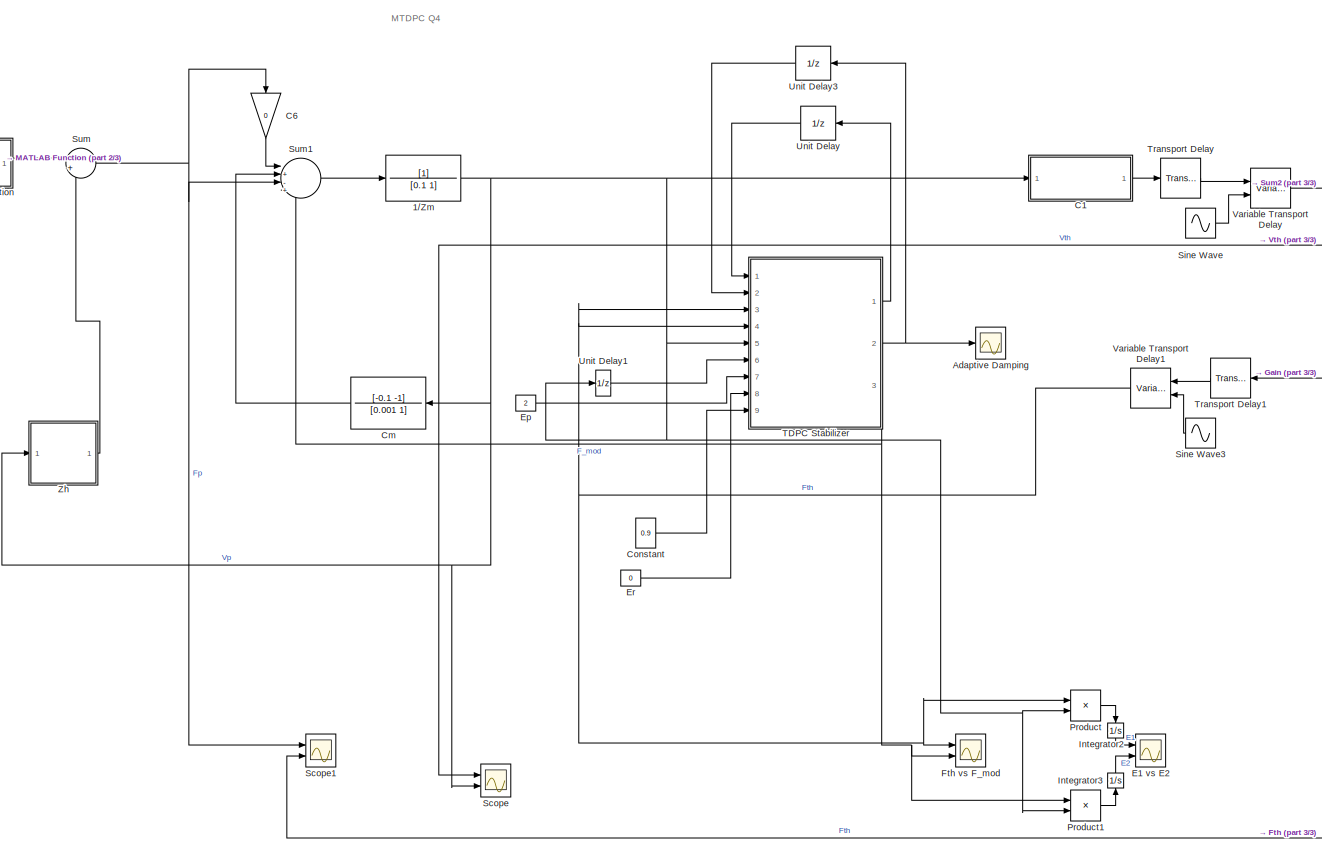
[diagram: root canvas - part 1/3, center side, full height]
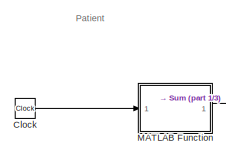
[diagram: root canvas - part 2/3, top left region]
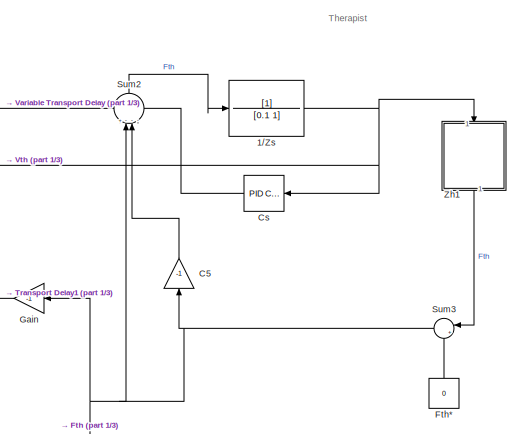
[diagram: root canvas - part 3/3, middle right region]
MODEL slx_9f220f8302b0
KIND model
CONFIG AbsTol = auto
CONFIG EnableMultiTasking = off
CONFIG FixedStep = 0.0001
CONFIG MaxStep = auto
CONFIG MinStep = auto
CONFIG RelTol = 1e-3
CONFIG SampleTimeConstraint = Unconstrained
CONFIG SolverName = ode4
CONFIG StartTime = 0.0
CONFIG StopTime = 20
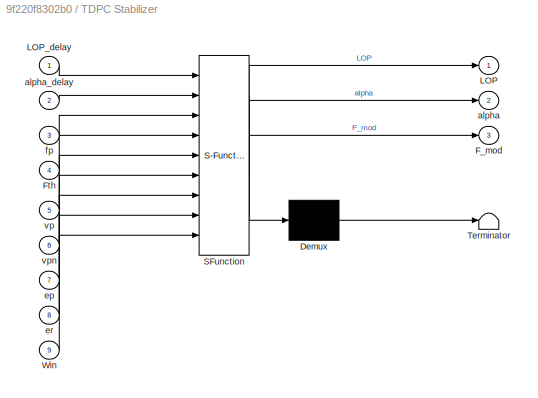
BLOCK [SubSystem]  TDPC Stabilizer
  ErrorFcn = Stateflow.Translate.translate
  PermitHierarchicalResolution = ExplicitOnly
  Ports = [9, 3]
  RequestExecContextInheritance = off
  SFBlockType = MATLAB Function
  TreatAsAtomicUnit = on
BLOCK [Demux]  TDPC Stabilizer/ Demux 
  Outputs = 1
  Ports = [1, 1]
BLOCK [S-Function]  TDPC Stabilizer/ SFunction 
  EnableBusSupport = on
  FunctionName = sf_sfun
  PortCounts = [9 4]
  Ports = [9, 4]
  SFcnIsStateOwnerBlock = off
  SFunctionDeploymentMode = off
  Tag = Stateflow S-Function 2
BLOCK [Terminator]  TDPC Stabilizer/ Terminator 
BLOCK [Outport]  TDPC Stabilizer/F_mod
  Port = 3
BLOCK [Inport]  TDPC Stabilizer/Fth
  Port = 4
BLOCK [Outport]  TDPC Stabilizer/LOP
BLOCK [Inport]  TDPC Stabilizer/LOP_delay
BLOCK [Inport]  TDPC Stabilizer/Win
  Port = 9
BLOCK [Outport]  TDPC Stabilizer/alpha
  Port = 2
BLOCK [Inport]  TDPC Stabilizer/alpha_delay
  Port = 2
BLOCK [Inport]  TDPC Stabilizer/ep
  Port = 7
BLOCK [Inport]  TDPC Stabilizer/er
  Port = 8
BLOCK [Inport]  TDPC Stabilizer/fp
  Port = 3
BLOCK [Inport]  TDPC Stabilizer/vp
  Port = 5
BLOCK [Inport]  TDPC Stabilizer/vpn
  Port = 6
BLOCK [TransferFcn] 1//Zm
  Denominator = [0.1 1]
BLOCK [TransferFcn] 1//Zs
  Denominator = [0.1 1]
BLOCK [Scope] Adaptive Damping
  Floating = off
  NumInputPorts = 1
  Ports = [1]
  ScopeSpecificationString = Simulink.scopes.TimeScopeBlockCfg('CurrentConfiguration', extmgr.ConfigurationSet(extmgr.Configuration('Core','General UI',true),extmgr.Configuration('Core','Source UI',true),extmgr.Configuration('Sources','WiredSimulink',true,'DataLoggingVariableName','ScopeData3'),extmgr.Configuration('Visuals','Time Domain',true,'SerializedDisplays',{struct('MinYLimReal','-17.85724','MaxYLimReal','160.71515','Y...<+1455ch>
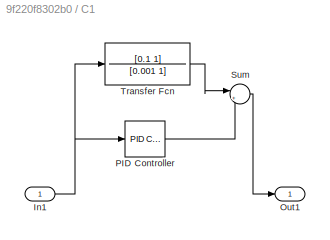
BLOCK [SubSystem] C1
  Ports = [1, 1]
  RequestExecContextInheritance = off
BLOCK [Inport] C1/In1
BLOCK [Outport] C1/Out1
BLOCK [Reference] C1/PID Controller  REF=slpidlib/PID Controller
  Ports = [1, 1]
  SourceBlock = slpidlib/PID Controller
  SourceProductBaseCode = SL
  SourceType = PID 1dof
BLOCK [Sum] C1/Sum
  Inputs = |++
  Ports = [2, 1]
BLOCK [TransferFcn] C1/Transfer Fcn
  Denominator = [0.001 1]
  Numerator = [0.1 1]
BLOCK [Gain] C5 
  Gain = -1
  NameLocation = right
BLOCK [Gain] C6 
  Gain = 0
  NameLocation = left
BLOCK [Clock] Clock
BLOCK [TransferFcn] Cm
  Denominator = [0.001 1]
  Numerator = [-0.1 -1]
BLOCK [Constant] Constant
  Value = 0.9
BLOCK [Reference] Cs  REF=slpidlib/PID Controller
  Ports = [1, 1]
  SourceBlock = slpidlib/PID Controller
  SourceProductBaseCode = SL
  SourceType = PID 1dof
BLOCK [Scope] E1 vs E2
  Floating = off
  NumInputPorts = 2
  Ports = [2]
  ScopeSpecificationString = Simulink.scopes.TimeScopeBlockCfg('CurrentConfiguration', extmgr.ConfigurationSet(extmgr.Configuration('Core','General UI',true),extmgr.Configuration('Core','Source UI',true),extmgr.Configuration('Sources','WiredSimulink',true,'DataLoggingVariableName','ScopeData4'),extmgr.Configuration('Visuals','Time Domain',true,'SerializedDisplays',{struct('MinYLimReal','-5.58472','MaxYLimReal','0.62052','YLab...<+1418ch>
BLOCK [Constant] Ep
  Value = 2
BLOCK [Constant] Er
  Value = 0
BLOCK [Scope] Fth vs F_mod
  Floating = off
  NumInputPorts = 2
  Ports = [2]
  ScopeSpecificationString = Simulink.scopes.TimeScopeBlockCfg('CurrentConfiguration', extmgr.ConfigurationSet(extmgr.Configuration('Core','General UI',true),extmgr.Configuration('Core','Source UI',true),extmgr.Configuration('Sources','WiredSimulink',true,'DataLoggingVariableName','ScopeData7'),extmgr.Configuration('Visuals','Time Domain',true,'SerializedDisplays',{struct('MinYLimReal','-61.4239','MaxYLimReal','33.42397','YLa...<+1424ch>
BLOCK [Constant] Fth*
  NameLocation = right
  OutDataTypeStr = Inherit: Inherit via back propagation
  Value = 0
BLOCK [Gain] Gain
  Gain = -1
BLOCK [Integrator] Integrator2
  NameLocation = left
  Ports = [1, 1]
BLOCK [Integrator] Integrator3
  NameLocation = left
  Ports = [1, 1]
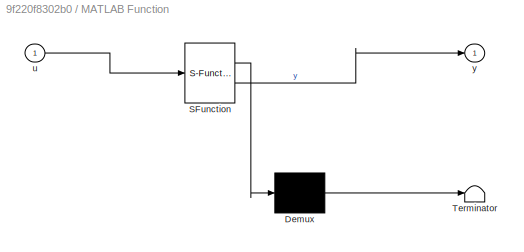
BLOCK [SubSystem] MATLAB Function
  ErrorFcn = Stateflow.Translate.translate
  PermitHierarchicalResolution = ExplicitOnly
  Ports = [1, 1]
  RequestExecContextInheritance = off
  SFBlockType = MATLAB Function
  TreatAsAtomicUnit = on
BLOCK [Demux] MATLAB Function/ Demux 
  Outputs = 1
  Ports = [1, 1]
BLOCK [S-Function] MATLAB Function/ SFunction 
  EnableBusSupport = on
  FunctionName = sf_sfun
  PortCounts = [1 2]
  Ports = [1, 2]
  SFcnIsStateOwnerBlock = off
  SFunctionDeploymentMode = off
  Tag = Stateflow S-Function 4
BLOCK [Terminator] MATLAB Function/ Terminator 
BLOCK [Inport] MATLAB Function/u
BLOCK [Outport] MATLAB Function/y
BLOCK [Product] Product
  Ports = [2, 1]
BLOCK [Product] Product1
  Ports = [2, 1]
BLOCK [Scope] Scope
  Floating = off
  NumInputPorts = 2
  Ports = [2]
  ScopeSpecificationString = Simulink.scopes.TimeScopeBlockCfg('CurrentConfiguration', extmgr.ConfigurationSet(extmgr.Configuration('Core','General UI',true),extmgr.Configuration('Core','Source UI',true),extmgr.Configuration('Sources','WiredSimulink',true,'DataLoggingVariableName','ScopeData1'),extmgr.Configuration('Visuals','Time Domain',true,'SerializedDisplays',{struct('MinYLimReal','-0.04786','MaxYLimReal','0.43078','YLab...<+1418ch>
BLOCK [Scope] Scope1
  Floating = off
  NumInputPorts = 2
  Ports = [2]
  ScopeSpecificationString = Simulink.scopes.TimeScopeBlockCfg('CurrentConfiguration', extmgr.ConfigurationSet(extmgr.Configuration('Core','General UI',true),extmgr.Configuration('Core','Source UI',true),extmgr.Configuration('Sources','WiredSimulink',true,'DataLoggingVariableName','ScopeData2'),extmgr.Configuration('Visuals','Time Domain',true,'SerializedDisplays',{struct('MinYLimReal','-6.05575','MaxYLimReal','43.77739','YLa...<+1423ch>
BLOCK [Sin] Sine Wave
  Amplitude = 0.02
  Frequency = 12
  Phase = pi/2
  Ports = [0, 1]
  SampleTime = 0
BLOCK [Sin] Sine Wave3
  Amplitude = 0.02
  Frequency = 12
  Phase = pi/2
  Ports = [0, 1]
  SampleTime = 0
BLOCK [Sum] Sum
  Inputs = |+-
  Ports = [2, 1]
BLOCK [Sum] Sum1
  Inputs = |+-+-
  Ports = [4, 1]
BLOCK [Sum] Sum2
  Inputs = +---
  NameLocation = right
  Ports = [4, 1]
BLOCK [Sum] Sum3
  Inputs = |++
  Ports = [2, 1]
BLOCK [TransportDelay] Transport Delay
  DelayTime = 0.1
  PadeOrder = 3
  Ports = [1, 1]
BLOCK [TransportDelay] Transport Delay1
  DelayTime = 0.1
  PadeOrder = 3
  Ports = [1, 1]
BLOCK [UnitDelay] Unit Delay
  HasFrameUpgradeWarning = on
  SampleTime = -1
BLOCK [UnitDelay] Unit Delay1
  HasFrameUpgradeWarning = on
  SampleTime = -1
BLOCK [UnitDelay] Unit Delay3
  HasFrameUpgradeWarning = on
  SampleTime = -1
BLOCK [VariableTransportDelay] Variable Transport Delay
  PadeOrder = 3
  Ports = [2, 1]
BLOCK [VariableTransportDelay] Variable Transport Delay1
  PadeOrder = 3
  Ports = [2, 1]
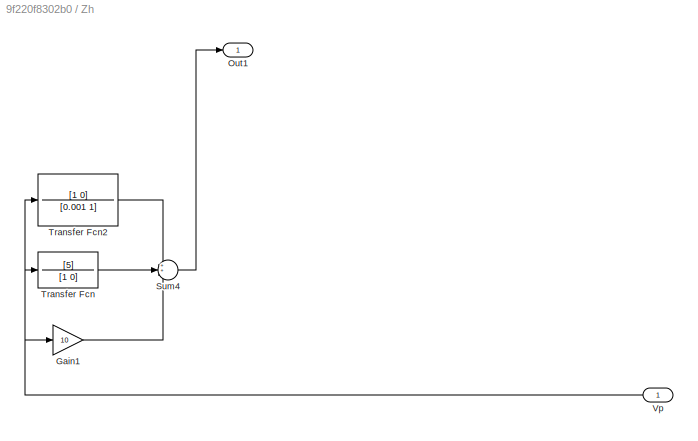
BLOCK [SubSystem] Zh
  Ports = [1, 1]
  RequestExecContextInheritance = off
BLOCK [Gain] Zh/Gain1
  Gain = 10
BLOCK [Outport] Zh/Out1
BLOCK [Sum] Zh/Sum4
  Inputs = 3
  Ports = [3, 1]
BLOCK [TransferFcn] Zh/Transfer Fcn
  Denominator = [1 0]
  Numerator = [5]
BLOCK [TransferFcn] Zh/Transfer Fcn2
  Denominator = [0.001 1]
  Numerator = [1 0]
BLOCK [Inport] Zh/Vp
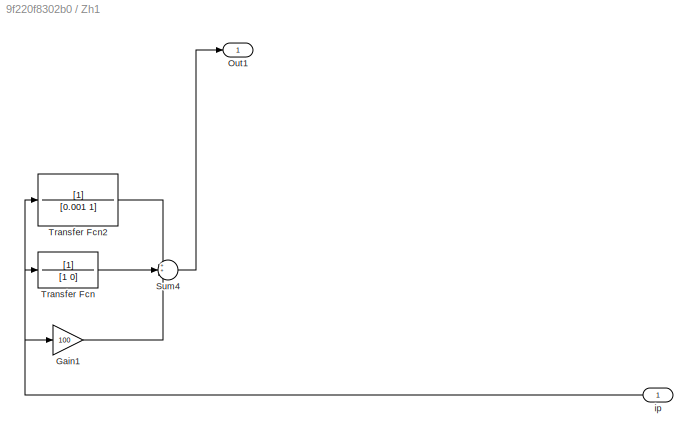
BLOCK [SubSystem] Zh1
  NameLocation = left
  Ports = [1, 1]
  RequestExecContextInheritance = off
BLOCK [Gain] Zh1/Gain1
  Gain = 100
BLOCK [Outport] Zh1/Out1
BLOCK [Sum] Zh1/Sum4
  Inputs = 3
  Ports = [3, 1]
BLOCK [TransferFcn] Zh1/Transfer Fcn
  Denominator = [1 0]
BLOCK [TransferFcn] Zh1/Transfer Fcn2
  Denominator = [0.001 1]
BLOCK [Inport] Zh1/ip
ANNOTATION (root): MTDPC Q4
ANNOTATION (root): Patient
ANNOTATION (root): Therapist
LINE  TDPC Stabilizer:1 -> Unit Delay:1
NET  TDPC Stabilizer:2 -> Adaptive Damping:1, Unit Delay3:1
NET  TDPC Stabilizer:3 -> Fth vs F_mod:2, Product1:1, Sum1:4
NET 1//Zm:1 ->  TDPC Stabilizer:5, C1:1, Cm:1, Product1:2, Product:2, Scope:2, Unit Delay1:1, Zh:1
NET 1//Zs:1 -> Cs:1, Scope:1, Zh1:1
NET C1/In1:1 -> C1/PID Controller:1, C1/Transfer Fcn:1
LINE C1/PID Controller:1 -> C1/Sum:2
LINE C1/Sum:1 -> C1/Out1:1
LINE C1/Transfer Fcn:1 -> C1/Sum:1
LINE C1:1 -> Transport Delay:1
LINE C5 :1 -> Sum2:3
LINE C6 :1 -> Sum1:1
LINE Clock:1 -> MATLAB Function:1
LINE Cm:1 -> Sum1:2
LINE Constant:1 ->  TDPC Stabilizer:9
LINE Cs:1 -> Sum2:4
LINE Ep:1 ->  TDPC Stabilizer:7
LINE Er:1 ->  TDPC Stabilizer:8
LINE Fth*:1 -> Sum3:2
LINE Gain:1 -> Transport Delay1:1
LINE Integrator2:1 -> E1 vs E2:1
LINE Integrator3:1 -> E1 vs E2:2
LINE MATLAB Function:1 -> Sum:1
LINE Product1:1 -> Integrator3:1
LINE Product:1 -> Integrator2:1
LINE Sine Wave3:1 -> Variable Transport Delay1:2
LINE Sine Wave:1 -> Variable Transport Delay:2
LINE Sum1:1 -> 1//Zm:1
LINE Sum2:1 -> 1//Zs:1
NET Sum3:1 -> C5 :1, Gain:1, Scope1:2, Sum2:2
NET Sum:1 -> C6 :1, Scope1:1, Sum1:3
LINE Transport Delay1:1 -> Variable Transport Delay1:1
LINE Transport Delay:1 -> Variable Transport Delay:1
LINE Unit Delay1:1 ->  TDPC Stabilizer:6
LINE Unit Delay3:1 ->  TDPC Stabilizer:2
LINE Unit Delay:1 ->  TDPC Stabilizer:1
NET Variable Transport Delay1:1 ->  TDPC Stabilizer:3,  TDPC Stabilizer:4, Fth vs F_mod:1, Product:1
LINE Variable Transport Delay:1 -> Sum2:1
LINE Zh/Gain1:1 -> Zh/Sum4:3
LINE Zh/Sum4:1 -> Zh/Out1:1
LINE Zh/Transfer Fcn2:1 -> Zh/Sum4:1
LINE Zh/Transfer Fcn:1 -> Zh/Sum4:2
NET Zh/Vp:1 -> Zh/Gain1:1, Zh/Transfer Fcn2:1, Zh/Transfer Fcn:1
LINE Zh1/Gain1:1 -> Zh1/Sum4:3
LINE Zh1/Sum4:1 -> Zh1/Out1:1
LINE Zh1/Transfer Fcn2:1 -> Zh1/Sum4:1
LINE Zh1/Transfer Fcn:1 -> Zh1/Sum4:2
NET Zh1/ip:1 -> Zh1/Gain1:1, Zh1/Transfer Fcn2:1, Zh1/Transfer Fcn:1
LINE Zh1:1 -> Sum3:1
LINE Zh:1 -> Sum:2
note: NET lines group one-source signal fan-out (src -> all destinations, sorted); 1:1 wires keep LINE
CHART  TDPC Stabilizer states=1 transitions=1
  STATE_LABEL 'eML_blk_kernel()'
  STATE_LABEL "SCRIPT:\nfunction [LOP,alpha, F_mod] = Stabilizer(LOP_delay,alpha_delay,fp,Fth,vp,vpn,ep,er,Win)\n\nPL = ((ep-er)*(vp')*vp)+(fp'*vp);\n\nLOP = Win*LOP_delay+(0.001*(PL+(alpha_delay*(vpn')*vpn*Win)));\n\nif LOP>=0\n    alpha = 0;\nelse \n    alpha=(-LOP)/(0.001*(vp')*vp+0.00001);\nend\n\nF_mod= Fth+(alpha*vp)+0.00001;"
CHART MATLAB Function states=1 transitions=1
  STATE_LABEL 'eML_blk_kernel()'
  STATE_LABEL 'SCRIPT:\nfunction y = fcn(u)\n\ny = sin(4*u)+ cos(2*u)+ sin(3*u)+cos(u);\n'
CHART  states=0 transitions=0
CHART  states=0 transitions=0
